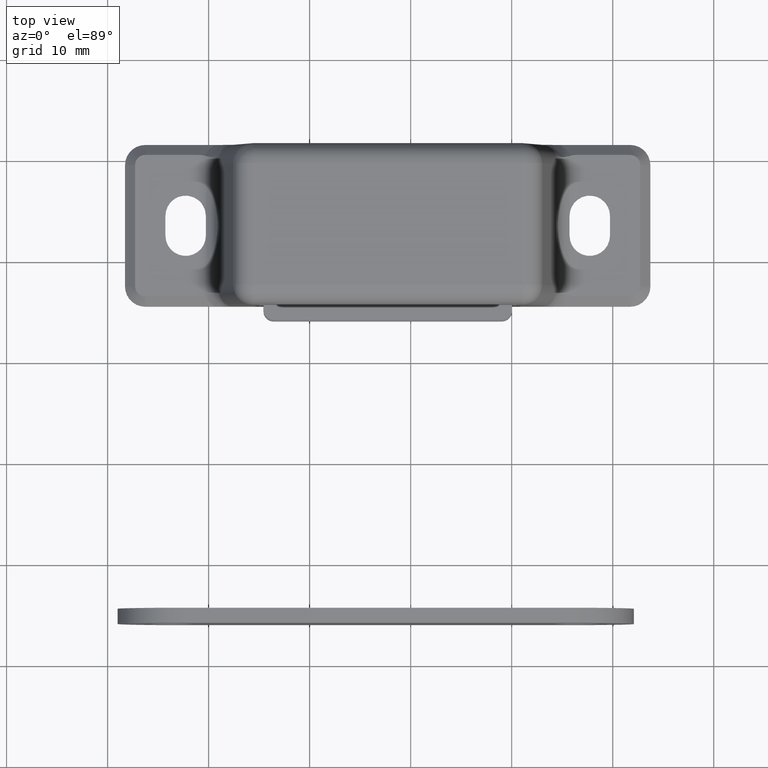
[diagram: clean part render]
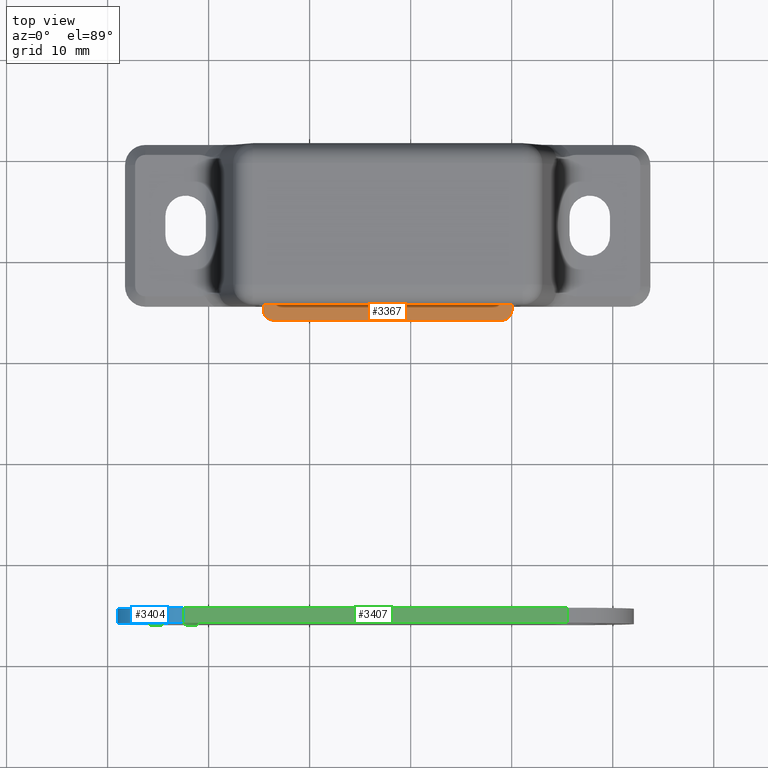
[diagram: same view with three faces highlighted in distinct colors, each labeled with its STEP entity id]
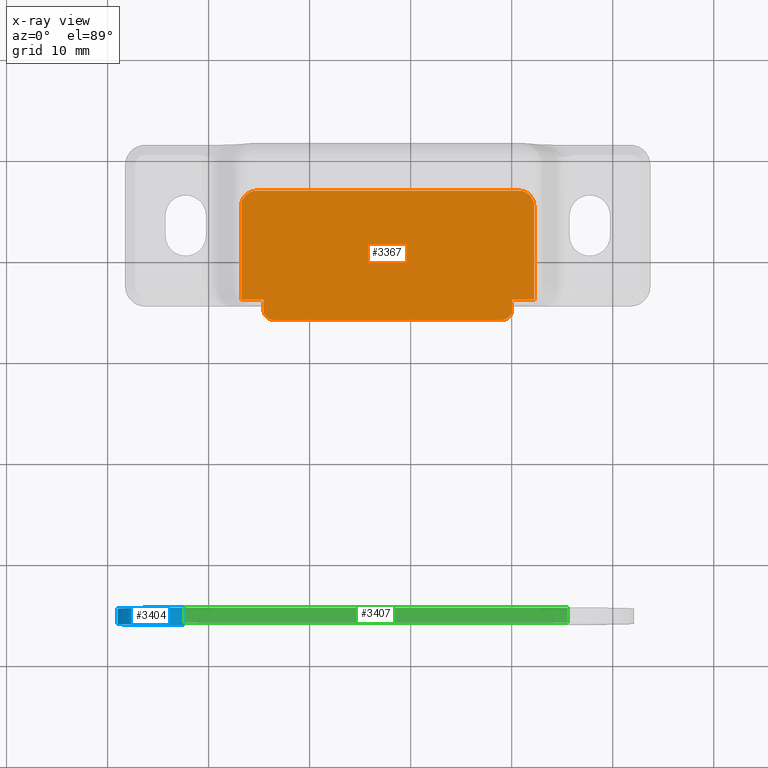
[diagram: x-ray of the same camera — body ghosted, the three highlighted faces saturated]
A machine part, top view with three faces highlighted in distinct colors.
The next image is the same camera in x-ray (body ghosted, the three faces saturated) — at least one of them is partly hidden behind the body in this view.
Their STEP definitions:

[orange] entity #3367 — the highlighted planar face has unit normal (0, 0, -1).
#209=PLANE('',#3676);
#384=FACE_OUTER_BOUND('',#584,.T.);
#584=EDGE_LOOP('',(#2941,#2942,#2943,#2944,#2945,#2946,#2947,#2948,#2949,
#2950,#2951,#2952));
#881=LINE('',#6020,#1177);
#887=LINE('',#6037,#1183);
#890=LINE('',#6043,#1186);
#894=LINE('',#6055,#1190);
#898=LINE('',#6067,#1194);
#901=LINE('',#6073,#1197);
#904=LINE('',#6077,#1200);
#906=LINE('',#6080,#1202);
#1177=VECTOR('',#4431,22.6);
#1183=VECTOR('',#4445,2.2);
#1186=VECTOR('',#4450,9.3);
#1190=VECTOR('',#4462,26.);
#1194=VECTOR('',#4474,9.29999999999998);
#1197=VECTOR('',#4479,2.2);
#1200=VECTOR('',#4484,1.00000000000002);
#1202=VECTOR('',#4488,1.);
#1355=CIRCLE('',#3656,1.);
#1358=CIRCLE('',#3661,1.);
#1360=CIRCLE('',#3666,1.5);
#1362=CIRCLE('',#3670,1.5);
#1605=VERTEX_POINT('',#6010);
#1606=VERTEX_POINT('',#6011);
#1609=VERTEX_POINT('',#6019);
#1612=VERTEX_POINT('',#6027);
#1615=VERTEX_POINT('',#6034);
#1616=VERTEX_POINT('',#6036);
#1618=VERTEX_POINT('',#6042);
#1620=VERTEX_POINT('',#6048);
#1622=VERTEX_POINT('',#6054);
#1624=VERTEX_POINT('',#6060);
#1626=VERTEX_POINT('',#6066);
#1628=VERTEX_POINT('',#6072);
#2047=EDGE_CURVE('',#1605,#1606,#1355,.T.);
#2051=EDGE_CURVE('',#1606,#1609,#881,.T.);
#2055=EDGE_CURVE('',#1609,#1612,#1358,.T.);
#2059=EDGE_CURVE('',#1616,#1615,#887,.T.);
#2062=EDGE_CURVE('',#1618,#1616,#890,.T.);
#2065=EDGE_CURVE('',#1620,#1618,#1360,.T.);
#2068=EDGE_CURVE('',#1622,#1620,#894,.T.);
#2071=EDGE_CURVE('',#1624,#1622,#1362,.T.);
#2074=EDGE_CURVE('',#1626,#1624,#898,.T.);
#2077=EDGE_CURVE('',#1628,#1626,#901,.T.);
#2080=EDGE_CURVE('',#1628,#1605,#904,.T.);
#2082=EDGE_CURVE('',#1615,#1612,#906,.T.);
#2941=ORIENTED_EDGE('',*,*,#2082,.T.);
#2942=ORIENTED_EDGE('',*,*,#2055,.F.);
#2943=ORIENTED_EDGE('',*,*,#2051,.F.);
#2944=ORIENTED_EDGE('',*,*,#2047,.F.);
#2945=ORIENTED_EDGE('',*,*,#2080,.F.);
#2946=ORIENTED_EDGE('',*,*,#2077,.T.);
#2947=ORIENTED_EDGE('',*,*,#2074,.T.);
#2948=ORIENTED_EDGE('',*,*,#2071,.T.);
#2949=ORIENTED_EDGE('',*,*,#2068,.T.);
#2950=ORIENTED_EDGE('',*,*,#2065,.T.);
#2951=ORIENTED_EDGE('',*,*,#2062,.T.);
#2952=ORIENTED_EDGE('',*,*,#2059,.T.);
#3367=ADVANCED_FACE('',(#384),#209,.F.);
#3656=AXIS2_PLACEMENT_3D('',#6012,#4423,#4424);
#3661=AXIS2_PLACEMENT_3D('',#6028,#4438,#4439);
#3666=AXIS2_PLACEMENT_3D('',#6049,#4456,#4457);
#3670=AXIS2_PLACEMENT_3D('',#6061,#4468,#4469);
#3676=AXIS2_PLACEMENT_3D('',#6082,#4491,#4492);
#4423=DIRECTION('center_axis',(0.,0.,-1.));
#4424=DIRECTION('ref_axis',(0.707106781186548,-0.707106781186548,0.));
#4431=DIRECTION('',(-1.,0.,0.));
#4438=DIRECTION('center_axis',(0.,0.,-1.));
#4439=DIRECTION('ref_axis',(-0.707106781186548,-0.707106781186548,0.));
#4445=DIRECTION('',(1.,-1.00929365875014E-15,0.));
#4450=DIRECTION('',(0.,-1.,0.));
#4456=DIRECTION('center_axis',(0.,0.,1.));
#4457=DIRECTION('ref_axis',(-1.,1.85037170770859E-16,0.));
#4462=DIRECTION('',(-1.,1.28102656687518E-16,0.));
#4468=DIRECTION('center_axis',(0.,0.,1.));
#4469=DIRECTION('ref_axis',(1.48029736616687E-15,1.,0.));
#4474=DIRECTION('',(0.,1.,0.));
#4479=DIRECTION('',(1.,5.04646829375071E-16,0.));
#4484=DIRECTION('',(0.,-1.,0.));
#4488=DIRECTION('',(0.,-1.,0.));
#4491=DIRECTION('center_axis',(0.,0.,-1.));
#4492=DIRECTION('ref_axis',(1.,0.,0.));
#6010=CARTESIAN_POINT('',(12.3,-8.5,10.));
#6011=CARTESIAN_POINT('',(11.3,-9.5,10.));
#6012=CARTESIAN_POINT('Origin',(11.3,-8.5,10.));
#6019=CARTESIAN_POINT('',(-11.3,-9.5,10.));
#6020=CARTESIAN_POINT('',(-12.3,-9.5,10.));
#6027=CARTESIAN_POINT('',(-12.3,-8.5,10.));
#6028=CARTESIAN_POINT('Origin',(-11.3,-8.5,10.));
#6034=CARTESIAN_POINT('',(-12.3,-7.5,10.));
#6036=CARTESIAN_POINT('',(-14.5,-7.5,10.));
#6037=CARTESIAN_POINT('',(-12.3,-7.5,10.));
#6042=CARTESIAN_POINT('',(-14.5,1.8,10.));
#6043=CARTESIAN_POINT('',(-14.5,-7.5,10.));
#6048=CARTESIAN_POINT('',(-13.,3.30000000000001,10.));
#6049=CARTESIAN_POINT('Origin',(-13.,1.8,10.));
#6054=CARTESIAN_POINT('',(13.,3.3,10.));
#6055=CARTESIAN_POINT('',(-13.,3.30000000000001,10.));
#6060=CARTESIAN_POINT('',(14.5,1.8,10.));
#6061=CARTESIAN_POINT('Origin',(13.,1.8,10.));
#6066=CARTESIAN_POINT('',(14.5,-7.49999999999998,10.));
#6067=CARTESIAN_POINT('',(14.5,1.8,10.));
#6072=CARTESIAN_POINT('',(12.3,-7.49999999999998,10.));
#6073=CARTESIAN_POINT('',(14.5,-7.49999999999998,10.));
#6077=CARTESIAN_POINT('',(12.3,-8.,10.));
#6080=CARTESIAN_POINT('',(-12.3,-8.5,10.));
#6082=CARTESIAN_POINT('Origin',(0.,-2.35,10.));

[blue] entity #3404 — the highlighted cylindrical surface (partial cylindrical patch) has radius 6.6 mm, axis along (-0, 1, 0).
#421=FACE_OUTER_BOUND('',#629,.T.);
#629=EDGE_LOOP('',(#3129,#3130,#3131,#3132));
#967=LINE('',#6393,#1263);
#968=LINE('',#6396,#1264);
#1263=VECTOR('',#4667,1.5);
#1264=VECTOR('',#4670,1.5);
#1385=CIRCLE('',#3733,6.6);
#1386=CIRCLE('',#3734,6.6);
#1691=VERTEX_POINT('',#6389);
#1692=VERTEX_POINT('',#6390);
#1693=VERTEX_POINT('',#6392);
#1694=VERTEX_POINT('',#6394);
#2173=EDGE_CURVE('',#1691,#1692,#1385,.T.);
#2174=EDGE_CURVE('',#1692,#1693,#967,.T.);
#2175=EDGE_CURVE('',#1694,#1693,#1386,.T.);
#2176=EDGE_CURVE('',#1691,#1694,#968,.T.);
#3129=ORIENTED_EDGE('',*,*,#2173,.T.);
#3130=ORIENTED_EDGE('',*,*,#2174,.T.);
#3131=ORIENTED_EDGE('',*,*,#2175,.F.);
#3132=ORIENTED_EDGE('',*,*,#2176,.F.);
#3215=CYLINDRICAL_SURFACE('',#3732,6.6);
#3404=ADVANCED_FACE('',(#421),#3215,.T.);
#3732=AXIS2_PLACEMENT_3D('',#6388,#4663,#4664);
#3733=AXIS2_PLACEMENT_3D('',#6391,#4665,#4666);
#3734=AXIS2_PLACEMENT_3D('',#6395,#4668,#4669);
#4663=DIRECTION('center_axis',(0.,0.,1.));
#4664=DIRECTION('ref_axis',(3.77163134582076E-17,1.,0.));
#4665=DIRECTION('center_axis',(0.,0.,1.));
#4666=DIRECTION('ref_axis',(3.77163134582076E-17,1.,0.));
#4667=DIRECTION('',(0.,0.,1.));
#4668=DIRECTION('center_axis',(0.,0.,1.));
#4669=DIRECTION('ref_axis',(3.77163134582076E-17,1.,0.));
#4670=DIRECTION('',(0.,0.,1.));
#6388=CARTESIAN_POINT('Origin',(0.,0.,0.));
#6389=CARTESIAN_POINT('',(2.4892766882417E-16,6.6,0.));
#6390=CARTESIAN_POINT('',(-9.34729876346689E-16,-6.6,0.));
#6391=CARTESIAN_POINT('Origin',(0.,0.,0.));
#6392=CARTESIAN_POINT('',(-9.34729876346689E-16,-6.6,1.5));
#6393=CARTESIAN_POINT('',(-9.34729876346689E-16,-6.6,0.));
#6394=CARTESIAN_POINT('',(2.4892766882417E-16,6.6,1.5));
#6395=CARTESIAN_POINT('Origin',(0.,0.,1.5));
#6396=CARTESIAN_POINT('',(2.4892766882417E-16,6.6,0.));

[green] entity #3407 — the highlighted planar face has unit normal (-0, -0, 1).
#231=PLANE('',#3739);
#424=FACE_OUTER_BOUND('',#632,.T.);
#632=EDGE_LOOP('',(#3141,#3142,#3143,#3144));
#967=LINE('',#6393,#1263);
#972=LINE('',#6408,#1268);
#973=LINE('',#6410,#1269);
#974=LINE('',#6411,#1270);
#1263=VECTOR('',#4667,1.5);
#1268=VECTOR('',#4682,1.5);
#1269=VECTOR('',#4685,38.);
#1270=VECTOR('',#4686,38.);
#1692=VERTEX_POINT('',#6390);
#1693=VERTEX_POINT('',#6392);
#1697=VERTEX_POINT('',#6404);
#1698=VERTEX_POINT('',#6406);
#2174=EDGE_CURVE('',#1692,#1693,#967,.T.);
#2182=EDGE_CURVE('',#1697,#1698,#972,.T.);
#2183=EDGE_CURVE('',#1692,#1697,#973,.T.);
#2184=EDGE_CURVE('',#1693,#1698,#974,.T.);
#3141=ORIENTED_EDGE('',*,*,#2183,.T.);
#3142=ORIENTED_EDGE('',*,*,#2182,.T.);
#3143=ORIENTED_EDGE('',*,*,#2184,.F.);
#3144=ORIENTED_EDGE('',*,*,#2174,.F.);
#3407=ADVANCED_FACE('',(#424),#231,.T.);
#3739=AXIS2_PLACEMENT_3D('',#6409,#4683,#4684);
#4667=DIRECTION('',(0.,0.,1.));
#4682=DIRECTION('',(0.,0.,1.));
#4683=DIRECTION('center_axis',(-1.46081976924363E-16,-1.,0.));
#4684=DIRECTION('ref_axis',(1.,-1.77635683940025E-16,0.));
#4685=DIRECTION('',(1.,-1.46081976924363E-16,0.));
#4686=DIRECTION('',(1.,-1.46081976924363E-16,0.));
#6390=CARTESIAN_POINT('',(-9.34729876346689E-16,-6.6,0.));
#6392=CARTESIAN_POINT('',(-9.34729876346689E-16,-6.6,1.5));
#6393=CARTESIAN_POINT('',(-9.34729876346689E-16,-6.6,0.));
#6404=CARTESIAN_POINT('',(38.,-6.6,0.));
#6406=CARTESIAN_POINT('',(38.,-6.6,1.5));
#6408=CARTESIAN_POINT('',(38.,-6.6,0.));
#6409=CARTESIAN_POINT('Origin',(-9.34729876346689E-16,-6.6,0.));
#6410=CARTESIAN_POINT('',(-9.34729876346689E-16,-6.6,0.));
#6411=CARTESIAN_POINT('',(-9.34729876346689E-16,-6.6,1.5));